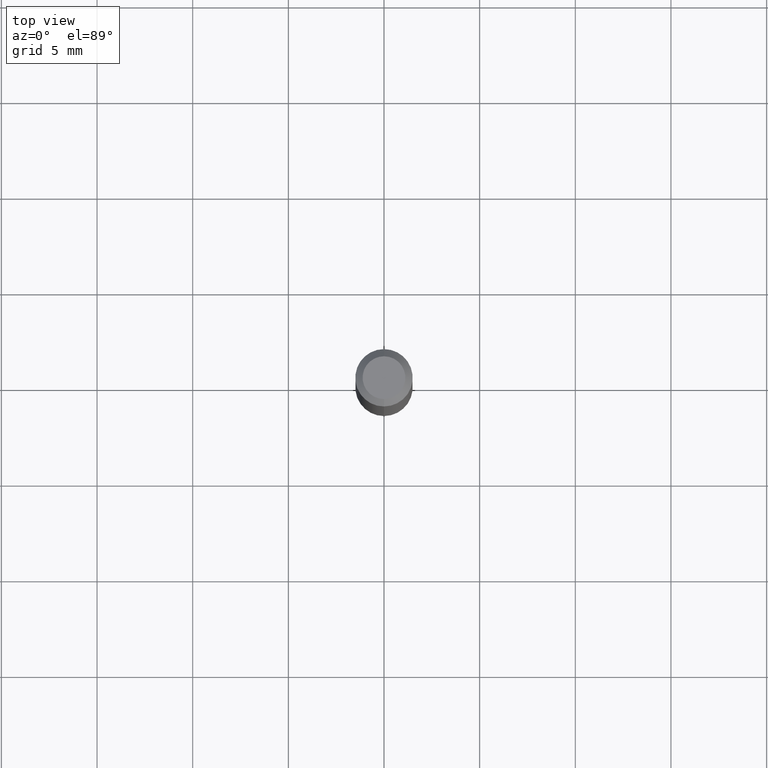
[diagram: clean part render]
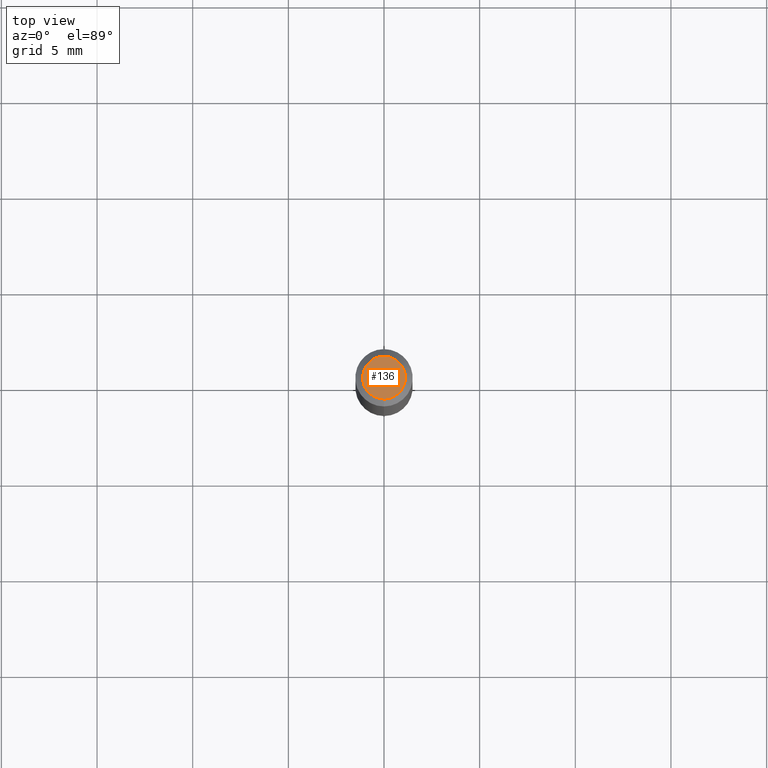
[diagram: same view with one face highlighted and labeled with its STEP entity id]
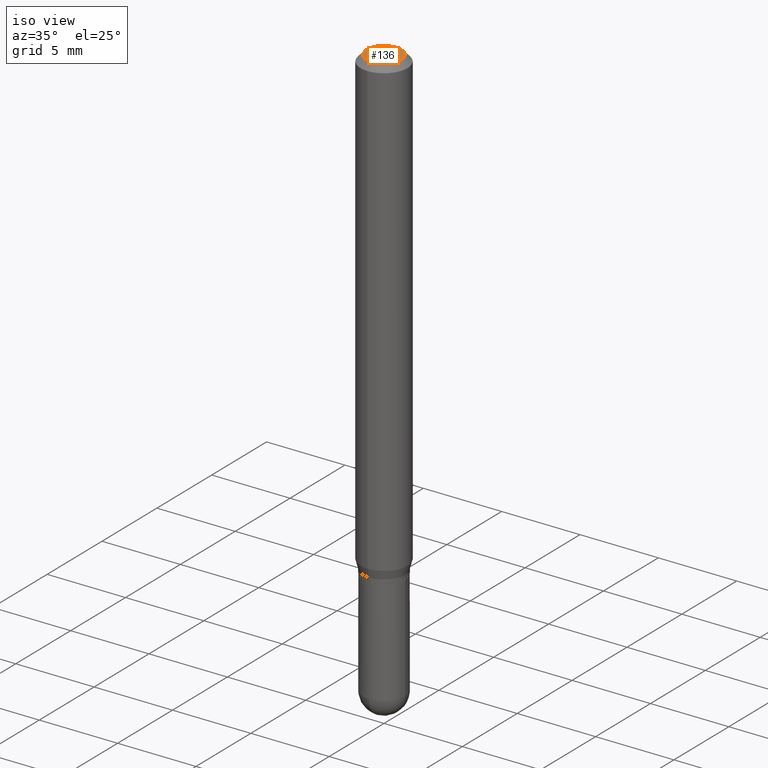
[diagram: same view with one face highlighted and labeled with its STEP entity id]
A machine part, top view. The second image highlights one B-rep face of the part: STEP entity #136.
A second angle (iso view) of the same face is appended — the face is thin or edge-on in the first view.
In plain terms, the highlighted planar face has unit normal (0, -0, -1).
Its self-contained STEP definition (entity closure, byte-faithful):
#14 = FACE_OUTER_BOUND ( 'NONE', #148, .T. ) ;
#42 = ORIENTED_EDGE ( 'NONE', *, *, #350, .T. ) ;
#75 = AXIS2_PLACEMENT_3D ( 'NONE', #394, #262, #341 ) ;
#125 = VERTEX_POINT ( 'NONE', #310 ) ;
#135 = AXIS2_PLACEMENT_3D ( 'NONE', #366, #166, #317 ) ;
#136 = ADVANCED_FACE ( 'NONE', ( #14 ), #324, .F. ) ;
#148 = EDGE_LOOP ( 'NONE', ( #42, #486 ) ) ;
#152 = CARTESIAN_POINT ( 'NONE',  ( 3.599717260347271507E-16, 0.04404999999999999888, -1.776619958574267204E-16 ) ) ;
#166 = DIRECTION ( 'NONE',  ( 2.445510790776562344E-29, -3.491421214518609091E-15, -1.000000000000000000 ) ) ;
#206 = AXIS2_PLACEMENT_3D ( 'NONE', #226, #339, #498 ) ;
#226 = CARTESIAN_POINT ( 'NONE',  ( 5.836184933641082622E-46, -8.332238796909111548E-32, -2.386489135788202439E-17 ) ) ;
#262 = DIRECTION ( 'NONE',  ( -2.445510790776562624E-29, 3.491421214518609091E-15, 1.000000000000000000 ) ) ;
#310 = CARTESIAN_POINT ( 'NONE',  ( -3.536586717851222218E-16, -0.04404999999999999888, 1.299322131416626839E-16 ) ) ;
#317 = DIRECTION ( 'NONE',  ( 6.982962677686265922E-15, 1.000000000000000000, -3.491421214518609091E-15 ) ) ;
#324 = PLANE ( 'NONE',  #135 ) ;
#327 = CIRCLE ( 'NONE', #206, 0.04404999999999999888 ) ;
#339 = DIRECTION ( 'NONE',  ( -2.445510790776562624E-29, 3.491421214518609091E-15, 1.000000000000000000 ) ) ;
#341 = DIRECTION ( 'NONE',  ( -6.982962677686265133E-15, -1.000000000000000000, 3.491421214518608697E-15 ) ) ;
#350 = EDGE_CURVE ( 'NONE', #438, #125, #417, .T. ) ;
#366 = CARTESIAN_POINT ( 'NONE',  ( 3.075995059520799729E-16, 0.04404999999999999888, -1.657295501784857359E-16 ) ) ;
#394 = CARTESIAN_POINT ( 'NONE',  ( 5.836184933641082622E-46, -8.332238796909111548E-32, -2.386489135788202439E-17 ) ) ;
#411 = EDGE_CURVE ( 'NONE', #125, #438, #327, .T. ) ;
#417 = CIRCLE ( 'NONE', #75, 0.04404999999999999888 ) ;
#438 = VERTEX_POINT ( 'NONE', #152 ) ;
#486 = ORIENTED_EDGE ( 'NONE', *, *, #411, .T. ) ;
#498 = DIRECTION ( 'NONE',  ( -6.982962677686265133E-15, -1.000000000000000000, 3.491421214518608697E-15 ) ) ;